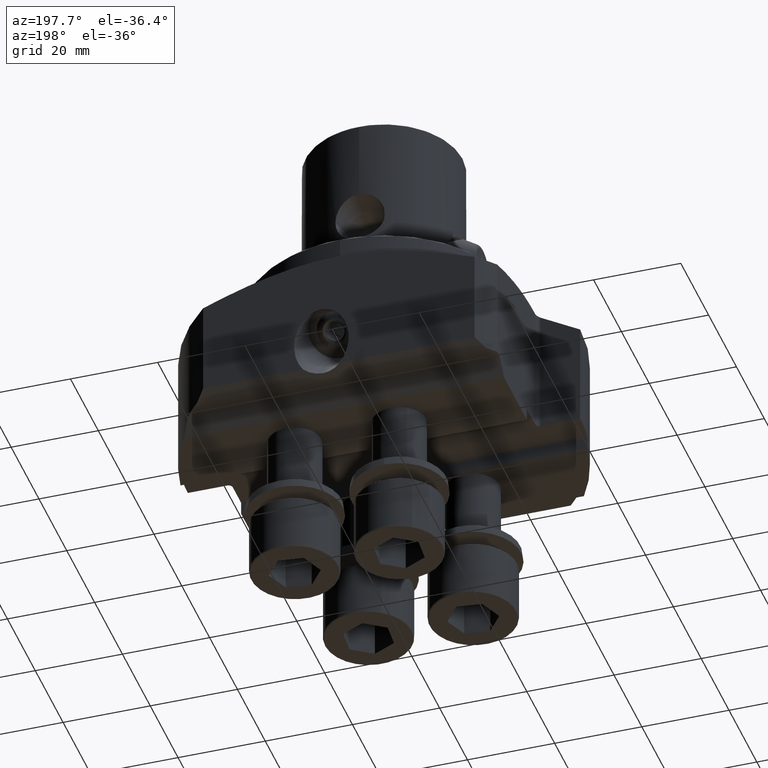
[diagram: clean part render]
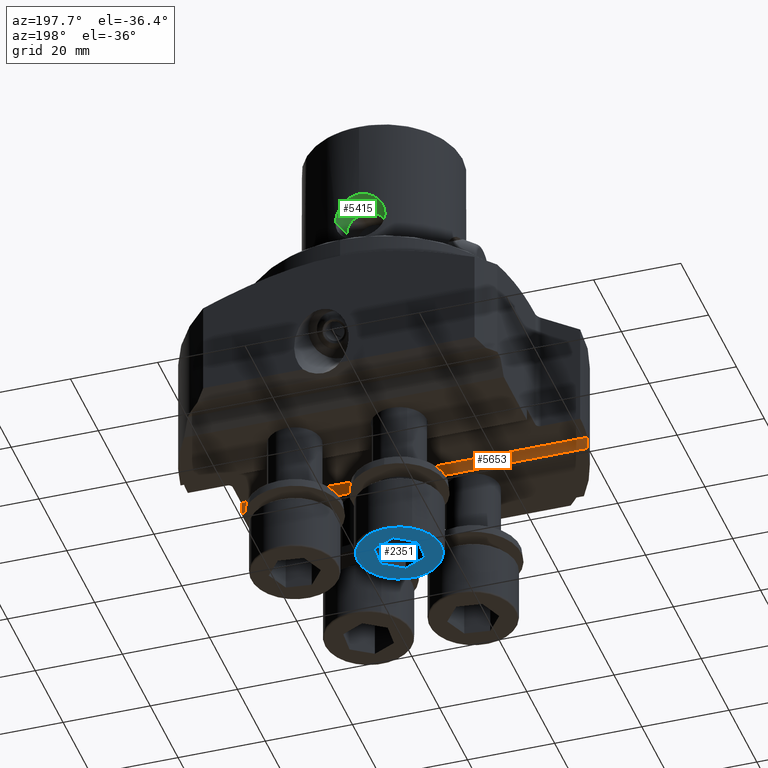
[diagram: same view with three faces highlighted in distinct colors, each labeled with its STEP entity id]
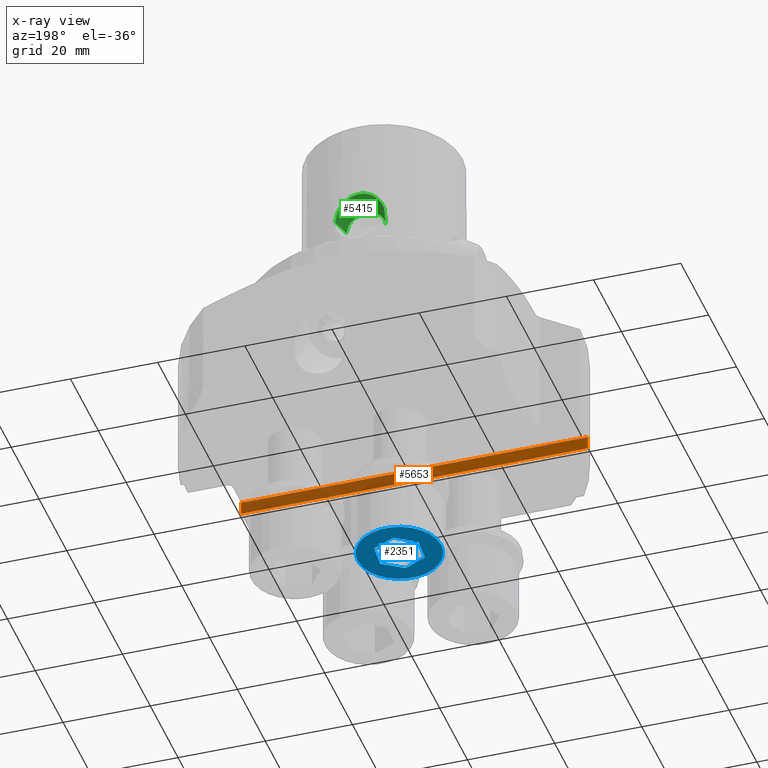
[diagram: x-ray of the same camera — body ghosted, the three highlighted faces saturated]
A machine part, auxiliary view with three faces highlighted in distinct colors.
The next image is the same camera in x-ray (body ghosted, the three faces saturated) — at least one of them is partly hidden behind the body in this view.
Their STEP definitions:

[orange] entity #5653 — the highlighted planar face has unit normal (0, -1, -0).
#2609=EDGE_CURVE('NONE',#3309,#5597,#6790,.T.);
#2835=EDGE_CURVE('NONE',#3253,#5597,#7048,.T.);
#3253=VERTEX_POINT('NONE',#7510);
#3309=VERTEX_POINT('NONE',#7573);
#3443=EDGE_CURVE('NONE',#3253,#5111,#7719,.T.);
#3843=EDGE_CURVE('NONE',#5111,#3309,#8172,.T.);
#5111=VERTEX_POINT('NONE',#9599);
#5597=VERTEX_POINT('NONE',#10144);
#5653=ADVANCED_FACE('NONE',(#10208),#10209,.F.);
#6790=LINE('',#11654,#11655);
#7048=LINE('',#12063,#12064);
#7510=CARTESIAN_POINT('',(35.0,-7.0,-40.0));
#7573=CARTESIAN_POINT('',(-44.4522215417857,-7.0,-37.0));
#7719=LINE('',#13040,#13041);
#8172=LINE('',#13662,#13663);
#9599=CARTESIAN_POINT('',(35.0,-7.0,-37.0));
#10144=CARTESIAN_POINT('',(-44.4522215417857,-7.0,-40.0));
#10208=FACE_OUTER_BOUND('',#16896,.T.);
#10209=PLANE('',#16897);
#11654=CARTESIAN_POINT('',(-44.4522215417857,-7.00000000000001,12.8033046321876));
#11655=VECTOR('',#18552,1000.0);
#12063=CARTESIAN_POINT('',(45.0,-7.0,-40.0));
#12064=VECTOR('',#18887,1000.0);
#13040=CARTESIAN_POINT('',(35.0,-7.00000000000001,7.37257477290144E-015));
#13041=VECTOR('',#19672,1000.0);
#13662=CARTESIAN_POINT('',(45.0,-7.0,-37.0));
#13663=VECTOR('',#20270,1000.0);
#16896=EDGE_LOOP('',(#22849,#22850,#22851,#22852));
#16897=AXIS2_PLACEMENT_3D('',#22853,#22854,#22855);
#18552=DIRECTION('',(0.0,0.0,-1.0));
#18887=DIRECTION('',(-1.0,0.0,0.0));
#19672=DIRECTION('',(-0.0,-2.89120579329468E-016,1.0));
#20270=DIRECTION('',(-1.0,0.0,0.0));
#22849=ORIENTED_EDGE('',*,*,#3843,.F.);
#22850=ORIENTED_EDGE('',*,*,#3443,.F.);
#22851=ORIENTED_EDGE('',*,*,#2835,.T.);
#22852=ORIENTED_EDGE('',*,*,#2609,.F.);
#22853=CARTESIAN_POINT('',(45.0,-7.0,-40.0));
#22854=DIRECTION('',(0.0,-1.0,-2.89120579329468E-016));
#22855=DIRECTION('',(1.0,0.0,0.0));

[blue] entity #2351 — the highlighted planar face has unit normal (-0, 0, 1).
#2351=ADVANCED_FACE('NONE',(#6490,#6491),#6492,.F.);
#2511=EDGE_CURVE('NONE',#4391,#5413,#6681,.T.);
#2553=VERTEX_POINT('NONE',#6728);
#2977=EDGE_CURVE('NONE',#3665,#4875,#7206,.T.);
#3207=VERTEX_POINT('NONE',#7460);
#3447=VERTEX_POINT('NONE',#7723);
#3515=EDGE_CURVE('NONE',#3447,#3207,#7802,.T.);
#3665=VERTEX_POINT('NONE',#7970);
#3715=EDGE_CURVE('NONE',#5413,#3665,#8032,.T.);
#4391=VERTEX_POINT('NONE',#8792);
#4539=EDGE_CURVE('NONE',#3207,#3447,#8960,.T.);
#4671=VERTEX_POINT('NONE',#9106);
#4875=VERTEX_POINT('NONE',#9334);
#4965=EDGE_CURVE('NONE',#4875,#4671,#9435,.T.);
#5407=EDGE_CURVE('NONE',#2553,#4391,#9935,.T.);
#5411=EDGE_CURVE('NONE',#4671,#2553,#9939,.T.);
#5413=VERTEX_POINT('NONE',#9941);
#6490=FACE_OUTER_BOUND('',#11218,.T.);
#6491=FACE_BOUND('',#11219,.T.);
#6492=PLANE('',#11220);
#6681=LINE('',#11473,#11474);
#6728=CARTESIAN_POINT('',(-13.1824057834823,16.5447993297435,-75.0));
#7206=LINE('',#12306,#12307);
#7460=CARTESIAN_POINT('',(-2.65304210419341,6.02691770640291,-75.0));
#7723=CARTESIAN_POINT('',(-13.3469578958066,21.9730822935971,-75.0));
#7802=CIRCLE('',#13168,9.6);
#7970=CARTESIAN_POINT('',(-2.81759421651775,11.4552006702565,-75.0));
#8032=LINE('',#13480,#13481);
#8792=CARTESIAN_POINT('',(-8.38734202464962,19.7604947260868,-75.0));
#8960=CIRCLE('',#14850,9.6);
#9106=CARTESIAN_POINT('',(-12.7950637588326,10.7843046036567,-75.0));
#9334=CARTESIAN_POINT('',(-7.61265797535039,8.23950527391321,-75.0));
#9435=LINE('',#15663,#15664);
#9935=LINE('',#16445,#16446);
#9939=LINE('',#16453,#16454);
#9941=CARTESIAN_POINT('',(-3.20493624116738,17.2156953963433,-75.0));
#11218=EDGE_LOOP('',(#18158,#18159));
#11219=EDGE_LOOP('',(#18160,#18161,#18162,#18163,#18164,#18165));
#11220=AXIS2_PLACEMENT_3D('',#18166,#18167,#18168);
#11473=CARTESIAN_POINT('',(-8.38734202464962,19.7604947260868,-75.0));
#11474=VECTOR('',#18411,1000.0);
#12306=CARTESIAN_POINT('',(-7.61265797535039,8.23950527391321,-75.0));
#12307=VECTOR('',#19077,1000.0);
#13168=AXIS2_PLACEMENT_3D('',#19775,#19776,#19777);
#13480=CARTESIAN_POINT('',(-2.81759421651775,11.4552006702565,-75.0));
#13481=VECTOR('',#20101,1000.0);
#14850=AXIS2_PLACEMENT_3D('',#21297,#21298,#21299);
#15663=CARTESIAN_POINT('',(-12.7950637588326,10.7843046036567,-75.0));
#15664=VECTOR('',#21883,1000.0);
#16445=CARTESIAN_POINT('',(-13.1824057834823,16.5447993297435,-75.0));
#16446=VECTOR('',#22517,1000.0);
#16453=CARTESIAN_POINT('',(-12.7950637588326,10.7843046036567,-75.0));
#16454=VECTOR('',#22519,1000.0);
#18158=ORIENTED_EDGE('',*,*,#4539,.T.);
#18159=ORIENTED_EDGE('',*,*,#3515,.T.);
#18160=ORIENTED_EDGE('',*,*,#5411,.F.);
#18161=ORIENTED_EDGE('',*,*,#4965,.F.);
#18162=ORIENTED_EDGE('',*,*,#2977,.F.);
#18163=ORIENTED_EDGE('',*,*,#3715,.F.);
#18164=ORIENTED_EDGE('',*,*,#2511,.F.);
#18165=ORIENTED_EDGE('',*,*,#5407,.F.);
#18166=CARTESIAN_POINT('',(-8.00000000000001,14.0,-75.0));
#18167=DIRECTION('',(-2.46519032881567E-032,2.46519032881568E-032,1.0));
#18168=DIRECTION('',(0.830529405583031,0.556974780813187,6.74364215385413E-033));
#18411=DIRECTION('',(0.897619012243004,-0.440772173418303,3.29938900706439E-032));
#19077=DIRECTION('',(-0.830529405583031,-0.556974780813187,-6.74364215385413E-033));
#19775=CARTESIAN_POINT('',(-8.0,14.0,-75.0));
#19776=DIRECTION('',(2.46519032881567E-032,-2.46519032881568E-032,-1.0));
#19777=DIRECTION('',(0.556974780813187,-0.830529405583031,3.42046190149522E-032));
#20101=DIRECTION('',(0.0670896066599769,-0.997746954231487,2.62502479167898E-032));
#21297=CARTESIAN_POINT('',(-8.0,14.0,-75.0));
#21298=DIRECTION('',(2.46519032881567E-032,-2.46519032881568E-032,-1.0));
#21299=DIRECTION('',(0.556974780813187,-0.830529405583031,3.42046190149522E-032));
#21883=DIRECTION('',(-0.897619012243004,0.440772173418303,-3.29938900706439E-032));
#22517=DIRECTION('',(0.830529405583031,0.556974780813187,6.74364215385413E-033));
#22519=DIRECTION('',(-0.0670896066599767,0.997746954231487,-2.62502479167898E-032));

[green] entity #5415 — the highlighted conical surface has half-angle 15 deg.
#3051=EDGE_CURVE('NONE',#4147,#5657,#7290,.T.);
#3223=EDGE_CURVE('NONE',#5657,#4073,#7476,.T.);
#4073=VERTEX_POINT('NONE',#8432);
#4147=VERTEX_POINT('NONE',#8514);
#4385=VERTEX_POINT('NONE',#8784);
#4481=EDGE_CURVE('NONE',#5885,#4385,#8897,.T.);
#4985=EDGE_CURVE('NONE',#4385,#4147,#9457,.T.);
#5415=ADVANCED_FACE('NONE',(#9943),#9944,.F.);
#5519=EDGE_CURVE('NONE',#5885,#4073,#10063,.T.);
#5657=VERTEX_POINT('NONE',#10213);
#5885=VERTEX_POINT('NONE',#10470);
#7290=B_SPLINE_CURVE_WITH_KNOTS('',3,(#12427,#12428,#12429,#12430,#12431,#12432,#12433,#12434,#12435,#12436,#12437,#12438,#12439,#12440,#12441,#12442,#12443,#12444,#12445,#12446,#12447,#12448,#12449,#12450),.UNSPECIFIED.,.F.,.F.,(4,2,2,2,2,2,2,2,2,2,2,4),(0.0226743596870395,0.0232432776296822,0.023812195572325,0.0249500314576106,0.0260878673428961,0.0272257032281817,0.0277946211708245,0.0283635391134672,0.0295013749987528,0.0306392108840384,0.0312081288266811,0.0317770467693239),.UNSPECIFIED.);
#7476=B_SPLINE_CURVE_WITH_KNOTS('',3,(#12689,#12690,#12691,#12692,#12693,#12694,#12695,#12696,#12697,#12698,#12699,#12700,#12701,#12702,#12703,#12704,#12705,#12706,#12707,#12708,#12709,#12710),.UNSPECIFIED.,.F.,.F.,(4,2,2,2,2,2,2,2,2,2,4),(0.0317770467693239,0.0329147734225081,0.0334836367491002,0.0340525000756923,0.0351902267288764,0.0363279533820606,0.0374656800352448,0.038603406688429,0.0391722700150211,0.0397411333416131,0.0408788599947973),.UNSPECIFIED.);
#8432=CARTESIAN_POINT('',(5.69356628234003,17.0758104635944,15.5));
#8514=CARTESIAN_POINT('',(-5.69356628233995,17.0758104635944,15.5));
#8784=CARTESIAN_POINT('',(-4.49999999999997,12.6213604557004,15.5));
#8897=CIRCLE('',#14771,4.5);
#9457=LINE('',#15696,#15697);
#9943=FACE_OUTER_BOUND('',#16458,.T.);
#9944=CONICAL_SURFACE('',#16459,6.47710050713538,0.261799387799143);
#10063=LINE('',#16615,#16616);
#10213=CARTESIAN_POINT('',(-6.37674826686836E-016,18.0,21.4412021222732));
#10470=CARTESIAN_POINT('',(4.50000000000003,12.6213604557004,15.5));
#12427=CARTESIAN_POINT('',(-5.69356628233995,17.0758104635944,15.5));
#12428=CARTESIAN_POINT('',(-5.69356628233995,17.0758104635944,15.6906038472208));
#12429=CARTESIAN_POINT('',(-5.68480074143355,17.0787407997958,15.8812798160531));
#12430=CARTESIAN_POINT('',(-5.64945092402843,17.0904666710247,16.262778140799));
#12431=CARTESIAN_POINT('',(-5.62263936104431,17.09933683139,16.4546543873164));
#12432=CARTESIAN_POINT('',(-5.51618361750927,17.1340973537767,17.0212419518763));
#12433=CARTESIAN_POINT('',(-5.41133762275862,17.1679428870532,17.3867820959143));
#12434=CARTESIAN_POINT('',(-5.13529852839445,17.2525229130372,18.0944038696257));
#12435=CARTESIAN_POINT('',(-4.96175374691931,17.3038931035756,18.4394896542979));
#12436=CARTESIAN_POINT('',(-4.5584697828586,17.4144787468303,19.0807636986275));
#12437=CARTESIAN_POINT('',(-4.32858804371673,17.4738114345249,19.3793031959295));
#12438=CARTESIAN_POINT('',(-3.93990643248296,17.5640208218011,19.7937592237643));
#12439=CARTESIAN_POINT('',(-3.8021400896711,17.5944612687744,19.9269960050274));
#12440=CARTESIAN_POINT('',(-3.51609901298778,17.6538489947873,20.177337807016));
#12441=CARTESIAN_POINT('',(-3.36782706013702,17.682818828873,20.2946310851554));
#12442=CARTESIAN_POINT('',(-2.90730360069878,17.7663994422141,20.623247076025));
#12443=CARTESIAN_POINT('',(-2.57952159423171,17.8177093706742,20.8115706827787));
#12444=CARTESIAN_POINT('',(-1.87870361330285,17.9051716441447,21.122625434186));
#12445=CARTESIAN_POINT('',(-1.51403479569283,17.9400813661716,21.2410447813167));
#12446=CARTESIAN_POINT('',(-0.956281197849006,17.9755453732981,21.3601812025418));
#12447=CARTESIAN_POINT('',(-0.768009354670208,17.9846203126379,21.390320131375));
#12448=CARTESIAN_POINT('',(-0.38659771470448,17.9968594028401,21.4308686845832));
#12449=CARTESIAN_POINT('',(-0.19229872112468,18.0,21.4412021222732));
#12450=CARTESIAN_POINT('',(-6.37674826686836E-016,18.0,21.4412021222732));
#12689=CARTESIAN_POINT('',(-6.37674826686836E-016,18.0,21.4412021222732));
#12690=CARTESIAN_POINT('',(0.384560520943431,18.0,21.4412021222732));
#12691=CARTESIAN_POINT('',(0.763935251004004,17.9876923457127,21.4009767856255));
#12692=CARTESIAN_POINT('',(1.32540524631597,17.9521160084535,21.2814786572575));
#12693=CARTESIAN_POINT('',(1.51237897673918,17.9372883090237,21.231318745583));
#12694=CARTESIAN_POINT('',(1.87736737870545,17.9027677685797,21.112600430594));
#12695=CARTESIAN_POINT('',(2.05531025954387,17.8831290559773,21.0442310073315));
#12696=CARTESIAN_POINT('',(2.57610036699235,17.8181403991014,20.8131059652115));
#12697=CARTESIAN_POINT('',(2.90770129946143,17.7664004626329,20.6233727009877));
#12698=CARTESIAN_POINT('',(3.52906924217728,17.6534807482675,20.1791586053225));
#12699=CARTESIAN_POINT('',(3.81420554165398,17.5932784518362,19.9285426570457));
#12700=CARTESIAN_POINT('',(4.33551416041527,17.4721185768259,19.3711551728383));
#12701=CARTESIAN_POINT('',(4.56541394039734,17.4126314113732,19.070743675455));
#12702=CARTESIAN_POINT('',(4.96412426320161,17.303184892239,18.4346740000494));
#12703=CARTESIAN_POINT('',(5.13377108933284,17.2529864649768,18.0980794332481));
#12704=CARTESIAN_POINT('',(5.34233517033496,17.1890878704307,17.5637881207406));
#12705=CARTESIAN_POINT('',(5.40388909789465,17.1697701118983,17.38105678501));
#12706=CARTESIAN_POINT('',(5.50868030847947,17.1364367456234,17.0141854060944));
#12707=CARTESIAN_POINT('',(5.55234666913515,17.1222897900121,16.8290099985074));
#12708=CARTESIAN_POINT('',(5.65756198766199,17.0879324994393,16.2683075325272));
#12709=CARTESIAN_POINT('',(5.69356628234003,17.0758104635944,15.8856856374781));
#12710=CARTESIAN_POINT('',(5.69356628234003,17.0758104635944,15.5));
#14771=AXIS2_PLACEMENT_3D('',#21230,#21231,#21232);
#15696=CARTESIAN_POINT('',(-6.47710050713533,20.0,15.5));
#15697=VECTOR('',#21910,1000.0);
#16458=EDGE_LOOP('',(#22521,#22522,#22523,#22524,#22525));
#16459=AXIS2_PLACEMENT_3D('',#22526,#22527,#22528);
#16615=CARTESIAN_POINT('',(6.47710050713543,20.0,15.5));
#16616=VECTOR('',#22703,1000.0);
#21230=CARTESIAN_POINT('',(3.00547450456298E-014,12.6213604557004,15.5));
#21231=DIRECTION('',(-2.31296463463574E-015,-1.0,0.0));
#21232=DIRECTION('',(-1.0,2.31296463463574E-015,0.0));
#21910=DIRECTION('',(-0.258819045102512,0.965925826289071,-3.1695144712278E-017));
#22521=ORIENTED_EDGE('',*,*,#4481,.T.);
#22522=ORIENTED_EDGE('',*,*,#4985,.T.);
#22523=ORIENTED_EDGE('',*,*,#3051,.T.);
#22524=ORIENTED_EDGE('',*,*,#3223,.T.);
#22525=ORIENTED_EDGE('',*,*,#5519,.F.);
#22526=CARTESIAN_POINT('',(4.76252067296845E-014,20.0,15.5));
#22527=DIRECTION('',(2.14259262960737E-015,1.0,-0.0));
#22528=DIRECTION('',(1.0,-2.14259262960737E-015,-0.0));
#22703=DIRECTION('',(0.258819045102517,0.965925826289069,0.0));